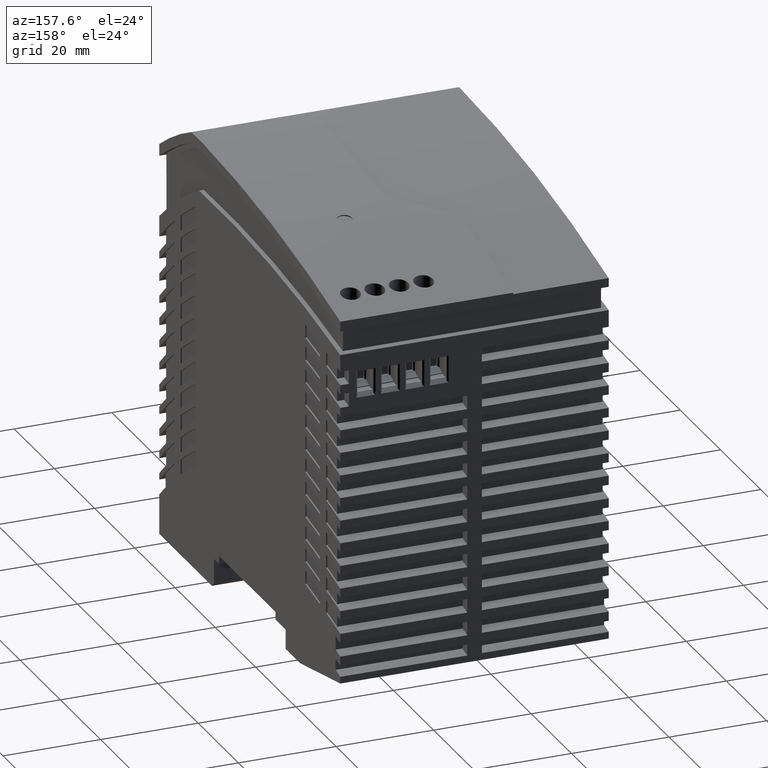
[diagram: clean part render]
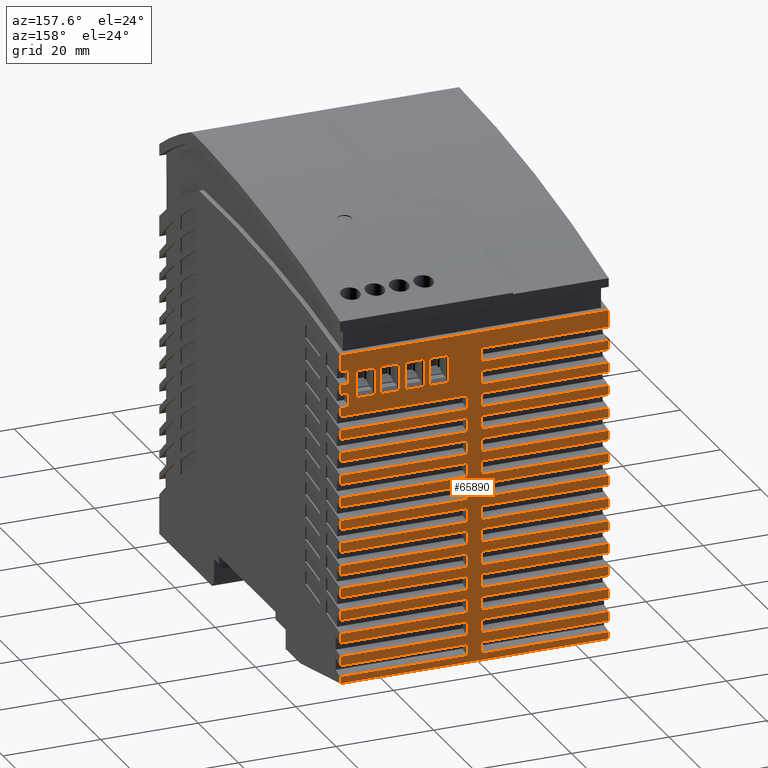
[diagram: same view with one face highlighted and labeled with its STEP entity id]
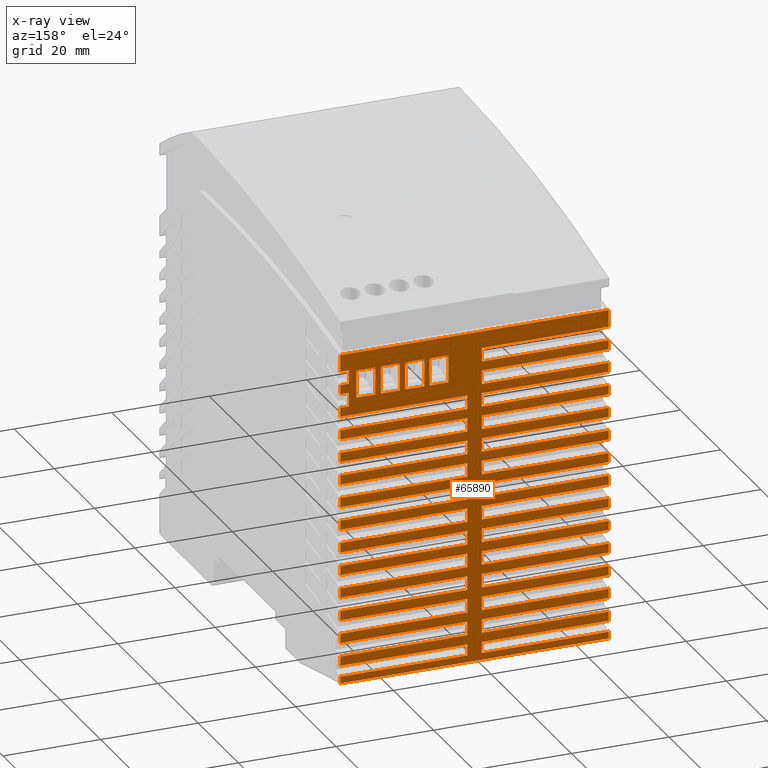
[diagram: x-ray of the same camera — body ghosted, the highlighted face saturated]
A machine part, auxiliary view. The second image highlights one B-rep face of the part: STEP entity #65890.
The next image is the same camera in x-ray: the body ghosted, the highlighted face saturated — about 0% of this face is hidden behind the body in this view.
In plain terms, the highlighted planar face has unit normal (0, -1, 0).
Its self-contained STEP definition (entity closure, byte-faithful):
#22440=CARTESIAN_POINT('',(44.9984763926468,6.02907227620774,-54.));
#22450=VERTEX_POINT('',#22440);
#22480=CARTESIAN_POINT('',(44.9984763926468,70.6450178215856,-54.));
#22490=DIRECTION('',(0.,1.,0.));
#22500=VECTOR('',#22490,1.);
#22510=LINE('',#22480,#22500);
#22520=CARTESIAN_POINT('',(44.9984763926468,7.42523708599833,-54.));
#22530=VERTEX_POINT('',#22520);
#22540=EDGE_CURVE('',#22450,#22530,#22510,.T.);
#22780=CARTESIAN_POINT('',(44.9984763926466,9.71694919013748,-54.));
#22790=VERTEX_POINT('',#22780);
#22820=CARTESIAN_POINT('',(44.9984763926468,11.6225007744063,-54.));
#22830=VERTEX_POINT('',#22820);
#22840=EDGE_CURVE('',#22790,#22830,#22510,.T.);
#23070=CARTESIAN_POINT('',(44.9984763926468,14.422921872841,-54.));
#23080=VERTEX_POINT('',#23070);
#23110=CARTESIAN_POINT('',(44.9984763926469,16.3282542433441,-54.));
#23120=VERTEX_POINT('',#23110);
#23130=EDGE_CURVE('',#23080,#23120,#22510,.T.);
#23370=CARTESIAN_POINT('',(44.9984763926466,19.127837263668,-54.));
#23380=VERTEX_POINT('',#23370);
#23410=CARTESIAN_POINT('',(44.9984763926468,21.0286517449621,-54.));
#23420=VERTEX_POINT('',#23410);
#23430=EDGE_CURVE('',#23380,#23420,#22510,.T.);
#23670=CARTESIAN_POINT('',(44.9984763926468,23.8282481274879,-54.));
#23680=VERTEX_POINT('',#23670);
#23710=CARTESIAN_POINT('',(44.9984763926468,25.7259068109905,-54.));
#23720=VERTEX_POINT('',#23710);
#23730=EDGE_CURVE('',#23680,#23720,#22510,.T.);
#23970=CARTESIAN_POINT('',(44.9984763926468,28.525515915243,-54.));
#23980=VERTEX_POINT('',#23970);
#24010=CARTESIAN_POINT('',(44.9984763926468,30.4201661538957,-54.));
#24020=VERTEX_POINT('',#24010);
#24030=EDGE_CURVE('',#23980,#24020,#22510,.T.);
#24270=CARTESIAN_POINT('',(44.9984763926465,33.2197873802546,-54.));
#24280=VERTEX_POINT('',#24270);
#24310=CARTESIAN_POINT('',(44.9984763926468,35.1115674083355,-54.));
#24320=VERTEX_POINT('',#24310);
#24330=EDGE_CURVE('',#24280,#24320,#22510,.T.);
#24570=CARTESIAN_POINT('',(44.9984763926468,37.9112001945338,-54.));
#24580=VERTEX_POINT('',#24570);
#24610=CARTESIAN_POINT('',(44.9984763926469,39.8002398280561,-54.));
#24620=VERTEX_POINT('',#24610);
#24630=EDGE_CURVE('',#24580,#24620,#22510,.T.);
#24870=CARTESIAN_POINT('',(44.9984763926468,42.599883646706,-54.));
#24880=VERTEX_POINT('',#24870);
#24910=CARTESIAN_POINT('',(44.9984763926468,0.,-54.));
#24920=DIRECTION('',(0.,-1.,0.));
#24930=VECTOR('',#24920,1.);
#24940=LINE('',#24910,#24930);
#24950=CARTESIAN_POINT('',(44.9984763926468,44.4863049205983,-54.));
#24960=VERTEX_POINT('',#24950);
#24970=EDGE_CURVE('',#24960,#24880,#24940,.T.);
#25210=CARTESIAN_POINT('',(44.9984763926466,47.2859592760169,-54.));
#25220=VERTEX_POINT('',#25210);
#25250=CARTESIAN_POINT('',(44.9984763926468,0.,-54.));
#25260=DIRECTION('',(0.,-1.,0.));
#25270=VECTOR('',#25260,1.);
#25280=LINE('',#25250,#25270);
#25290=CARTESIAN_POINT('',(44.9984763926468,49.1698770229476,-54.));
#25300=VERTEX_POINT('',#25290);
#25310=EDGE_CURVE('',#25300,#25220,#25280,.T.);
#25550=CARTESIAN_POINT('',(44.9984763926468,51.9695414491986,-54.));
#25560=VERTEX_POINT('',#25550);
#25590=CARTESIAN_POINT('',(44.9984763926468,0.,-54.));
#25600=DIRECTION('',(0.,-1.,0.));
#25610=VECTOR('',#25600,1.);
#25620=LINE('',#25590,#25610);
#25630=CARTESIAN_POINT('',(44.9984763926468,53.8510638277123,-54.));
#25640=VERTEX_POINT('',#25630);
#25650=EDGE_CURVE('',#25640,#25560,#25620,.T.);
#25890=CARTESIAN_POINT('',(44.9984763926467,56.6507378861592,-54.));
#25900=VERTEX_POINT('',#25890);
#25930=CARTESIAN_POINT('',(44.9984763926468,0.,-54.));
#25940=DIRECTION('',(0.,-1.,0.));
#25950=VECTOR('',#25940,1.);
#25960=LINE('',#25930,#25950);
#25970=CARTESIAN_POINT('',(44.9984763926469,58.5299668623666,-54.));
#25980=VERTEX_POINT('',#25970);
#25990=EDGE_CURVE('',#25980,#25900,#25960,.T.);
#26230=CARTESIAN_POINT('',(44.9984763926466,61.329650139755,-54.));
#26240=VERTEX_POINT('',#26230);
#26270=CARTESIAN_POINT('',(44.9984763926468,0.,-54.));
#26280=DIRECTION('',(0.,-1.,0.));
#26290=VECTOR('',#26280,1.);
#26300=LINE('',#26270,#26290);
#26310=CARTESIAN_POINT('',(44.9984763926468,63.2066819276949,-54.));
#26320=VERTEX_POINT('',#26310);
#26330=EDGE_CURVE('',#26320,#26240,#26300,.T.);
#26570=CARTESIAN_POINT('',(44.9984763926466,66.0063740342894,-54.));
#26580=VERTEX_POINT('',#26570);
#26610=CARTESIAN_POINT('',(44.9984763926468,0.,-54.));
#26620=DIRECTION('',(0.,-1.,0.));
#26630=VECTOR('',#26620,1.);
#26640=LINE('',#26610,#26630);
#26650=CARTESIAN_POINT('',(44.9984763926468,67.8812994988936,-54.));
#26660=VERTEX_POINT('',#26650);
#26670=EDGE_CURVE('',#26660,#26580,#26640,.T.);
#26910=CARTESIAN_POINT('',(44.9984763926465,70.6810000668509,-54.));
#26920=VERTEX_POINT('',#26910);
#26950=CARTESIAN_POINT('',(44.9984763926468,0.,-54.));
#26960=DIRECTION('',(0.,-1.,0.));
#26970=VECTOR('',#26960,1.);
#26980=LINE('',#26950,#26970);
#26990=CARTESIAN_POINT('',(44.9984763926468,74.1388975645999,-54.));
#27000=VERTEX_POINT('',#26990);
#27010=EDGE_CURVE('',#27000,#26920,#26980,.T.);
#40500=CARTESIAN_POINT('',(44.9984763926468,74.1388975645999,1.));
#40510=VERTEX_POINT('',#40500);
#40540=CARTESIAN_POINT('',(44.9984763926468,0.,1.));
#40550=DIRECTION('',(0.,-1.,0.));
#40560=VECTOR('',#40550,1.);
#40570=LINE('',#40540,#40560);
#40580=CARTESIAN_POINT('',(44.9984763926467,70.6810000668507,1.));
#40590=VERTEX_POINT('',#40580);
#40600=EDGE_CURVE('',#40510,#40590,#40570,.T.);
#40840=CARTESIAN_POINT('',(44.9984763926468,67.8812994988935,1.));
#40850=VERTEX_POINT('',#40840);
#40880=CARTESIAN_POINT('',(44.9984763926467,66.0063740342895,1.));
#40890=VERTEX_POINT('',#40880);
#40900=EDGE_CURVE('',#40850,#40890,#40570,.T.);
#41140=CARTESIAN_POINT('',(44.9984763926468,63.2066819276949,1.));
#41150=VERTEX_POINT('',#41140);
#41180=CARTESIAN_POINT('',(44.9984763926468,61.3296501397554,1.));
#41190=VERTEX_POINT('',#41180);
#41200=EDGE_CURVE('',#41150,#41190,#40570,.T.);
#41440=CARTESIAN_POINT('',(44.9984763926468,58.5299668623664,1.));
#41450=VERTEX_POINT('',#41440);
#41480=CARTESIAN_POINT('',(44.9984763926467,56.6507378861591,1.));
#41490=VERTEX_POINT('',#41480);
#41500=EDGE_CURVE('',#41450,#41490,#40570,.T.);
#41740=CARTESIAN_POINT('',(44.9984763926469,53.8510638277124,1.));
#41750=VERTEX_POINT('',#41740);
#41780=CARTESIAN_POINT('',(44.9984763926467,51.9695414491985,1.));
#41790=VERTEX_POINT('',#41780);
#41800=EDGE_CURVE('',#41750,#41790,#40570,.T.);
#42040=CARTESIAN_POINT('',(44.9984763926468,49.1698770229475,1.));
#42050=VERTEX_POINT('',#42040);
#42080=CARTESIAN_POINT('',(44.9984763926468,47.2859592760169,1.));
#42090=VERTEX_POINT('',#42080);
#42100=EDGE_CURVE('',#42050,#42090,#40570,.T.);
#42340=CARTESIAN_POINT('',(44.998476392647,44.4863049205986,1.));
#42350=VERTEX_POINT('',#42340);
#42380=CARTESIAN_POINT('',(44.9984763926468,42.5998836467058,1.));
#42390=VERTEX_POINT('',#42380);
#42400=EDGE_CURVE('',#42350,#42390,#40570,.T.);
#42640=CARTESIAN_POINT('',(44.9984763926468,39.8002398280561,1.));
#42650=VERTEX_POINT('',#42640);
#42680=CARTESIAN_POINT('',(44.9984763926467,37.9112001945338,1.));
#42690=VERTEX_POINT('',#42680);
#42700=EDGE_CURVE('',#42650,#42690,#40570,.T.);
#42940=CARTESIAN_POINT('',(44.9984763926468,35.1115674083356,1.));
#42950=VERTEX_POINT('',#42940);
#42980=CARTESIAN_POINT('',(44.9984763926467,33.2197873802544,1.));
#42990=VERTEX_POINT('',#42980);
#43000=EDGE_CURVE('',#42950,#42990,#40570,.T.);
#43240=CARTESIAN_POINT('',(44.9984763926468,30.4201661538957,1.));
#43250=VERTEX_POINT('',#43240);
#43280=CARTESIAN_POINT('',(44.9984763926468,28.5255159152431,1.));
#43290=VERTEX_POINT('',#43280);
#43300=EDGE_CURVE('',#43250,#43290,#40570,.T.);
#43540=CARTESIAN_POINT('',(44.9984763926469,25.7259068109909,1.));
#43550=VERTEX_POINT('',#43540);
#43580=CARTESIAN_POINT('',(44.9984763926468,23.8282481274878,1.));
#43590=VERTEX_POINT('',#43580);
#43600=EDGE_CURVE('',#43550,#43590,#40570,.T.);
#43840=CARTESIAN_POINT('',(44.9984763926468,21.0286517449619,1.));
#43850=VERTEX_POINT('',#43840);
#43880=CARTESIAN_POINT('',(44.9984763926468,19.1278372636677,1.));
#43890=VERTEX_POINT('',#43880);
#43900=EDGE_CURVE('',#43850,#43890,#40570,.T.);
#44140=CARTESIAN_POINT('',(44.9984763926468,16.328254243344,1.));
#44150=VERTEX_POINT('',#44140);
#44180=CARTESIAN_POINT('',(44.9984763926468,14.4229218728411,1.));
#44190=VERTEX_POINT('',#44180);
#44200=EDGE_CURVE('',#44150,#44190,#40570,.T.);
#44430=CARTESIAN_POINT('',(44.9984763926469,11.6225007744062,1.));
#44440=VERTEX_POINT('',#44430);
#44470=CARTESIAN_POINT('',(44.9984763926468,9.71694919013724,1.));
#44480=VERTEX_POINT('',#44470);
#44490=EDGE_CURVE('',#44440,#44480,#40570,.T.);
#44730=CARTESIAN_POINT('',(44.9984763926468,7.42523708599816,1.));
#44740=VERTEX_POINT('',#44730);
#44770=CARTESIAN_POINT('',(44.9984763926468,6.02907227620774,1.));
#44780=VERTEX_POINT('',#44770);
#44790=EDGE_CURVE('',#44740,#44780,#40570,.T.);
#56290=CARTESIAN_POINT('',(44.9984763926468,74.1388975645999,-54.));
#56300=DIRECTION('',(0.,0.,1.));
#56310=VECTOR('',#56300,1.);
#56320=LINE('',#56290,#56310);
#56330=EDGE_CURVE('',#27000,#40510,#56320,.T.);
#57820=CARTESIAN_POINT('',(44.9984763926468,6.02907227620774,0.));
#57830=DIRECTION('',(0.,0.,1.));
#57840=VECTOR('',#57830,1.);
#57850=LINE('',#57820,#57840);
#57860=EDGE_CURVE('',#22450,#44780,#57850,.T.);
#57980=CARTESIAN_POINT('',(44.9984763926468,6.02907227620774,-54.));
#57990=DIRECTION('',(-1.,0.,0.));
#58000=DIRECTION('',(0.,-1.,0.));
#58010=AXIS2_PLACEMENT_3D('',#57980,#57990,#58000);
#58020=PLANE('',#58010);
#58030=CARTESIAN_POINT('',(44.9984763926468,70.3390722762253,0.));
#58040=DIRECTION('',(0.,0.,1.));
#58050=VECTOR('',#58040,1.);
#58060=LINE('',#58030,#58050);
#58070=CARTESIAN_POINT('',(44.9984763926468,70.3390722762253,
-6.20000000001391));
#58080=VERTEX_POINT('',#58070);
#58090=CARTESIAN_POINT('',(44.9984763926468,70.3390722762253,
-2.29999999998609));
#58100=VERTEX_POINT('',#58090);
#58110=EDGE_CURVE('',#58080,#58100,#58060,.T.);
#58120=ORIENTED_EDGE('',*,*,#58110,.F.);
#58130=CARTESIAN_POINT('',(44.9984763926468,0.,-2.29999999998609));
#58140=DIRECTION('',(0.,-1.,0.));
#58150=VECTOR('',#58140,1.);
#58160=LINE('',#58130,#58150);
#58170=CARTESIAN_POINT('',(44.9984763926468,64.7390722761974,
-2.29999999998611));
#58180=VERTEX_POINT('',#58170);
#58190=EDGE_CURVE('',#58100,#58180,#58160,.T.);
#58200=ORIENTED_EDGE('',*,*,#58190,.F.);
#58210=CARTESIAN_POINT('',(44.9984763926468,64.7390722761974,0.));
#58220=DIRECTION('',(0.,0.,-1.));
#58230=VECTOR('',#58220,1.);
#58240=LINE('',#58210,#58230);
#58250=CARTESIAN_POINT('',(44.9984763926468,64.7390722761974,
-6.20000000001391));
#58260=VERTEX_POINT('',#58250);
#58270=EDGE_CURVE('',#58180,#58260,#58240,.T.);
#58280=ORIENTED_EDGE('',*,*,#58270,.F.);
#58290=CARTESIAN_POINT('',(44.9984763926468,0.,-6.20000000001391));
#58300=DIRECTION('',(0.,1.,0.));
#58310=VECTOR('',#58300,1.);
#58320=LINE('',#58290,#58310);
#58330=EDGE_CURVE('',#58260,#58080,#58320,.T.);
#58340=ORIENTED_EDGE('',*,*,#58330,.F.);
#58350=EDGE_LOOP('',(#58340,#58280,#58200,#58120));
#58360=FACE_BOUND('',#58350,.T.);
#58370=CARTESIAN_POINT('',(44.9984763926468,70.3390722762253,0.));
#58380=DIRECTION('',(0.,0.,1.));
#58390=VECTOR('',#58380,1.);
#58400=LINE('',#58370,#58390);
#58410=CARTESIAN_POINT('',(44.9984763926468,70.3390722762253,
-16.2000000000139));
#58420=VERTEX_POINT('',#58410);
#58430=CARTESIAN_POINT('',(44.9984763926468,70.3390722762253,
-12.2999999999861));
#58440=VERTEX_POINT('',#58430);
#58450=EDGE_CURVE('',#58420,#58440,#58400,.T.);
#58460=ORIENTED_EDGE('',*,*,#58450,.F.);
#58470=CARTESIAN_POINT('',(44.9984763926468,0.,-12.2999999999861));
#58480=DIRECTION('',(0.,-1.,0.));
#58490=VECTOR('',#58480,1.);
#58500=LINE('',#58470,#58490);
#58510=CARTESIAN_POINT('',(44.9984763926468,64.7390722761974,
-12.2999999999861));
#58520=VERTEX_POINT('',#58510);
#58530=EDGE_CURVE('',#58440,#58520,#58500,.T.);
#58540=ORIENTED_EDGE('',*,*,#58530,.F.);
#58550=CARTESIAN_POINT('',(44.9984763926468,64.7390722761974,0.));
#58560=DIRECTION('',(0.,0.,-1.));
#58570=VECTOR('',#58560,1.);
#58580=LINE('',#58550,#58570);
#58590=CARTESIAN_POINT('',(44.9984763926468,64.7390722761974,
-16.2000000000139));
#58600=VERTEX_POINT('',#58590);
#58610=EDGE_CURVE('',#58520,#58600,#58580,.T.);
#58620=ORIENTED_EDGE('',*,*,#58610,.F.);
#58630=CARTESIAN_POINT('',(44.9984763926468,0.,-16.2000000000139));
#58640=DIRECTION('',(0.,1.,0.));
#58650=VECTOR('',#58640,1.);
#58660=LINE('',#58630,#58650);
#58670=EDGE_CURVE('',#58600,#58420,#58660,.T.);
#58680=ORIENTED_EDGE('',*,*,#58670,.F.);
#58690=EDGE_LOOP('',(#58680,#58620,#58540,#58460));
#58700=FACE_BOUND('',#58690,.T.);
#58710=CARTESIAN_POINT('',(44.9984763926468,70.3390722762253,0.));
#58720=DIRECTION('',(0.,0.,1.));
#58730=VECTOR('',#58720,1.);
#58740=LINE('',#58710,#58730);
#58750=CARTESIAN_POINT('',(44.9984763926468,70.3390722762253,
-21.2000000000139));
#58760=VERTEX_POINT('',#58750);
#58770=CARTESIAN_POINT('',(44.9984763926468,70.3390722762253,
-17.2999999999861));
#58780=VERTEX_POINT('',#58770);
#58790=EDGE_CURVE('',#58760,#58780,#58740,.T.);
#58800=ORIENTED_EDGE('',*,*,#58790,.F.);
#58810=CARTESIAN_POINT('',(44.9984763926468,0.,-17.2999999999861));
#58820=DIRECTION('',(0.,-1.,0.));
#58830=VECTOR('',#58820,1.);
#58840=LINE('',#58810,#58830);
#58850=CARTESIAN_POINT('',(44.9984763926468,64.7390722761974,
-17.2999999999861));
#58860=VERTEX_POINT('',#58850);
#58870=EDGE_CURVE('',#58780,#58860,#58840,.T.);
#58880=ORIENTED_EDGE('',*,*,#58870,.F.);
#58890=CARTESIAN_POINT('',(44.9984763926468,64.7390722761974,0.));
#58900=DIRECTION('',(0.,0.,-1.));
#58910=VECTOR('',#58900,1.);
#58920=LINE('',#58890,#58910);
#58930=CARTESIAN_POINT('',(44.9984763926468,64.7390722761974,
-21.2000000000139));
#58940=VERTEX_POINT('',#58930);
#58950=EDGE_CURVE('',#58860,#58940,#58920,.T.);
#58960=ORIENTED_EDGE('',*,*,#58950,.F.);
#58970=CARTESIAN_POINT('',(44.9984763926468,0.,-21.2000000000139));
#58980=DIRECTION('',(0.,1.,0.));
#58990=VECTOR('',#58980,1.);
#59000=LINE('',#58970,#58990);
#59010=EDGE_CURVE('',#58940,#58760,#59000,.T.);
#59020=ORIENTED_EDGE('',*,*,#59010,.F.);
#59030=EDGE_LOOP('',(#59020,#58960,#58880,#58800));
#59040=FACE_BOUND('',#59030,.T.);
#59050=CARTESIAN_POINT('',(44.9984763926468,70.3390722762253,0.));
#59060=DIRECTION('',(0.,0.,1.));
#59070=VECTOR('',#59060,1.);
#59080=LINE('',#59050,#59070);
#59090=CARTESIAN_POINT('',(44.9984763926468,70.3390722762253,
-11.2000000000139));
#59100=VERTEX_POINT('',#59090);
#59110=CARTESIAN_POINT('',(44.9984763926468,70.3390722762253,
-7.29999999998609));
#59120=VERTEX_POINT('',#59110);
#59130=EDGE_CURVE('',#59100,#59120,#59080,.T.);
#59140=ORIENTED_EDGE('',*,*,#59130,.F.);
#59150=CARTESIAN_POINT('',(44.9984763926468,0.,-7.29999999998608));
#59160=DIRECTION('',(0.,-1.,0.));
#59170=VECTOR('',#59160,1.);
#59180=LINE('',#59150,#59170);
#59190=CARTESIAN_POINT('',(44.9984763926468,64.7390722761974,
-7.29999999998608));
#59200=VERTEX_POINT('',#59190);
#59210=EDGE_CURVE('',#59120,#59200,#59180,.T.);
#59220=ORIENTED_EDGE('',*,*,#59210,.F.);
#59230=CARTESIAN_POINT('',(44.9984763926468,64.7390722761974,0.));
#59240=DIRECTION('',(0.,0.,-1.));
#59250=VECTOR('',#59240,1.);
#59260=LINE('',#59230,#59250);
#59270=CARTESIAN_POINT('',(44.9984763926468,64.7390722761974,
-11.2000000000139));
#59280=VERTEX_POINT('',#59270);
#59290=EDGE_CURVE('',#59200,#59280,#59260,.T.);
#59300=ORIENTED_EDGE('',*,*,#59290,.F.);
#59310=CARTESIAN_POINT('',(44.9984763926468,0.,-11.2000000000139));
#59320=DIRECTION('',(0.,1.,0.));
#59330=VECTOR('',#59320,1.);
#59340=LINE('',#59310,#59330);
#59350=EDGE_CURVE('',#59280,#59100,#59340,.T.);
#59360=ORIENTED_EDGE('',*,*,#59350,.F.);
#59370=EDGE_LOOP('',(#59360,#59300,#59220,#59140));
#59380=FACE_BOUND('',#59370,.T.);
#59390=ORIENTED_EDGE('',*,*,#27010,.F.);
#59400=CARTESIAN_POINT('',(44.9984763926467,70.6810000668509,-28.));
#59410=DIRECTION('',(0.,0.,-1.));
#59420=VECTOR('',#59410,1.);
#59430=LINE('',#59400,#59420);
#59440=CARTESIAN_POINT('',(44.9984763926467,70.6810000668509,-28.));
#59450=VERTEX_POINT('',#59440);
#59460=EDGE_CURVE('',#59450,#26920,#59430,.T.);
#59470=ORIENTED_EDGE('',*,*,#59460,.T.);
#59480=CARTESIAN_POINT('',(44.9984763926468,0.,-28.));
#59490=DIRECTION('',(0.,-1.,0.));
#59500=VECTOR('',#59490,1.);
#59510=LINE('',#59480,#59500);
#59520=CARTESIAN_POINT('',(44.9984763926468,67.8812994988936,-28.));
#59530=VERTEX_POINT('',#59520);
#59540=EDGE_CURVE('',#59450,#59530,#59510,.T.);
#59550=ORIENTED_EDGE('',*,*,#59540,.F.);
#59560=CARTESIAN_POINT('',(44.9984763926468,67.8812994988936,-28.));
#59570=DIRECTION('',(0.,0.,1.));
#59580=VECTOR('',#59570,1.);
#59590=LINE('',#59560,#59580);
#59600=EDGE_CURVE('',#26660,#59530,#59590,.T.);
#59610=ORIENTED_EDGE('',*,*,#59600,.T.);
#59620=ORIENTED_EDGE('',*,*,#26670,.F.);
#59630=CARTESIAN_POINT('',(44.9984763926468,66.0063740342894,-28.));
#59640=DIRECTION('',(0.,0.,-1.));
#59650=VECTOR('',#59640,1.);
#59660=LINE('',#59630,#59650);
#59670=CARTESIAN_POINT('',(44.9984763926468,66.0063740342894,-28.));
#59680=VERTEX_POINT('',#59670);
#59690=EDGE_CURVE('',#59680,#26580,#59660,.T.);
#59700=ORIENTED_EDGE('',*,*,#59690,.T.);
#59710=CARTESIAN_POINT('',(44.9984763926468,0.,-28.));
#59720=DIRECTION('',(0.,-1.,0.));
#59730=VECTOR('',#59720,1.);
#59740=LINE('',#59710,#59730);
#59750=CARTESIAN_POINT('',(44.9984763926468,63.2066819276949,-28.));
#59760=VERTEX_POINT('',#59750);
#59770=EDGE_CURVE('',#59680,#59760,#59740,.T.);
#59780=ORIENTED_EDGE('',*,*,#59770,.F.);
#59790=CARTESIAN_POINT('',(44.9984763926468,63.2066819276949,-28.));
#59800=DIRECTION('',(0.,0.,1.));
#59810=VECTOR('',#59800,1.);
#59820=LINE('',#59790,#59810);
#59830=EDGE_CURVE('',#26320,#59760,#59820,.T.);
#59840=ORIENTED_EDGE('',*,*,#59830,.T.);
#59850=ORIENTED_EDGE('',*,*,#26330,.F.);
#59860=CARTESIAN_POINT('',(44.9984763926468,61.3296501397549,-28.));
#59870=DIRECTION('',(0.,0.,-1.));
#59880=VECTOR('',#59870,1.);
#59890=LINE('',#59860,#59880);
#59900=CARTESIAN_POINT('',(44.9984763926468,61.3296501397549,-28.));
#59910=VERTEX_POINT('',#59900);
#59920=EDGE_CURVE('',#59910,#26240,#59890,.T.);
#59930=ORIENTED_EDGE('',*,*,#59920,.T.);
#59940=CARTESIAN_POINT('',(44.9984763926468,0.,-28.));
#59950=DIRECTION('',(0.,-1.,0.));
#59960=VECTOR('',#59950,1.);
#59970=LINE('',#59940,#59960);
#59980=CARTESIAN_POINT('',(44.9984763926468,58.5299668623666,-28.));
#59990=VERTEX_POINT('',#59980);
#60000=EDGE_CURVE('',#59910,#59990,#59970,.T.);
#60010=ORIENTED_EDGE('',*,*,#60000,.F.);
#60020=CARTESIAN_POINT('',(44.9984763926469,58.5299668623666,-28.));
#60030=DIRECTION('',(0.,0.,1.));
#60040=VECTOR('',#60030,1.);
#60050=LINE('',#60020,#60040);
#60060=EDGE_CURVE('',#25980,#59990,#60050,.T.);
#60070=ORIENTED_EDGE('',*,*,#60060,.T.);
#60080=ORIENTED_EDGE('',*,*,#25990,.F.);
#60090=CARTESIAN_POINT('',(44.9984763926467,56.6507378861592,-28.));
#60100=DIRECTION('',(0.,0.,-1.));
#60110=VECTOR('',#60100,1.);
#60120=LINE('',#60090,#60110);
#60130=CARTESIAN_POINT('',(44.9984763926468,56.6507378861592,-28.));
#60140=VERTEX_POINT('',#60130);
#60150=EDGE_CURVE('',#60140,#25900,#60120,.T.);
#60160=ORIENTED_EDGE('',*,*,#60150,.T.);
#60170=CARTESIAN_POINT('',(44.9984763926468,0.,-28.));
#60180=DIRECTION('',(0.,-1.,0.));
#60190=VECTOR('',#60180,1.);
#60200=LINE('',#60170,#60190);
#60210=CARTESIAN_POINT('',(44.9984763926468,53.8510638277123,-28.));
#60220=VERTEX_POINT('',#60210);
#60230=EDGE_CURVE('',#60140,#60220,#60200,.T.);
#60240=ORIENTED_EDGE('',*,*,#60230,.F.);
#60250=CARTESIAN_POINT('',(44.9984763926469,53.8510638277123,-28.));
#60260=DIRECTION('',(0.,0.,1.));
#60270=VECTOR('',#60260,1.);
#60280=LINE('',#60250,#60270);
#60290=EDGE_CURVE('',#25640,#60220,#60280,.T.);
#60300=ORIENTED_EDGE('',*,*,#60290,.T.);
#60310=ORIENTED_EDGE('',*,*,#25650,.F.);
#60320=CARTESIAN_POINT('',(44.9984763926468,51.9695414491986,-28.));
#60330=DIRECTION('',(0.,0.,-1.));
#60340=VECTOR('',#60330,1.);
#60350=LINE('',#60320,#60340);
#60360=CARTESIAN_POINT('',(44.9984763926468,51.9695414491986,-28.));
#60370=VERTEX_POINT('',#60360);
#60380=EDGE_CURVE('',#60370,#25560,#60350,.T.);
#60390=ORIENTED_EDGE('',*,*,#60380,.T.);
#60400=CARTESIAN_POINT('',(44.9984763926468,0.,-28.));
#60410=DIRECTION('',(0.,-1.,0.));
#60420=VECTOR('',#60410,1.);
#60430=LINE('',#60400,#60420);
#60440=CARTESIAN_POINT('',(44.9984763926468,49.1698770229476,-28.));
#60450=VERTEX_POINT('',#60440);
#60460=EDGE_CURVE('',#60370,#60450,#60430,.T.);
#60470=ORIENTED_EDGE('',*,*,#60460,.F.);
#60480=CARTESIAN_POINT('',(44.998476392647,49.1698770229476,-28.));
#60490=DIRECTION('',(0.,0.,1.));
#60500=VECTOR('',#60490,1.);
#60510=LINE('',#60480,#60500);
#60520=EDGE_CURVE('',#25300,#60450,#60510,.T.);
#60530=ORIENTED_EDGE('',*,*,#60520,.T.);
#60540=ORIENTED_EDGE('',*,*,#25310,.F.);
#60550=CARTESIAN_POINT('',(44.9984763926467,47.2859592760169,-28.));
#60560=DIRECTION('',(0.,0.,-1.));
#60570=VECTOR('',#60560,1.);
#60580=LINE('',#60550,#60570);
#60590=CARTESIAN_POINT('',(44.9984763926467,47.2859592760169,-28.));
#60600=VERTEX_POINT('',#60590);
#60610=EDGE_CURVE('',#60600,#25220,#60580,.T.);
#60620=ORIENTED_EDGE('',*,*,#60610,.T.);
#60630=CARTESIAN_POINT('',(44.9984763926468,0.,-28.));
#60640=DIRECTION('',(0.,-1.,0.));
#60650=VECTOR('',#60640,1.);
#60660=LINE('',#60630,#60650);
#60670=CARTESIAN_POINT('',(44.998476392647,44.4863049205983,-28.));
#60680=VERTEX_POINT('',#60670);
#60690=EDGE_CURVE('',#60600,#60680,#60660,.T.);
#60700=ORIENTED_EDGE('',*,*,#60690,.F.);
#60710=CARTESIAN_POINT('',(44.998476392647,44.4863049205983,-28.));
#60720=DIRECTION('',(0.,0.,1.));
#60730=VECTOR('',#60720,1.);
#60740=LINE('',#60710,#60730);
#60750=EDGE_CURVE('',#24960,#60680,#60740,.T.);
#60760=ORIENTED_EDGE('',*,*,#60750,.T.);
#60770=ORIENTED_EDGE('',*,*,#24970,.F.);
#60780=CARTESIAN_POINT('',(44.9984763926468,42.5998836467059,-28.));
#60790=DIRECTION('',(0.,0.,-1.));
#60800=VECTOR('',#60790,1.);
#60810=LINE('',#60780,#60800);
#60820=CARTESIAN_POINT('',(44.9984763926468,42.5998836467059,-28.));
#60830=VERTEX_POINT('',#60820);
#60840=EDGE_CURVE('',#60830,#24880,#60810,.T.);
#60850=ORIENTED_EDGE('',*,*,#60840,.T.);
#60860=CARTESIAN_POINT('',(44.9984763926468,0.,-28.));
#60870=DIRECTION('',(0.,-1.,0.));
#60880=VECTOR('',#60870,1.);
#60890=LINE('',#60860,#60880);
#60900=CARTESIAN_POINT('',(44.9984763926469,39.8002398280561,-28.));
#60910=VERTEX_POINT('',#60900);
#60920=EDGE_CURVE('',#60830,#60910,#60890,.T.);
#60930=ORIENTED_EDGE('',*,*,#60920,.F.);
#60940=CARTESIAN_POINT('',(44.9984763926469,39.8002398280561,-28.));
#60950=DIRECTION('',(0.,0.,1.));
#60960=VECTOR('',#60950,1.);
#60970=LINE('',#60940,#60960);
#60980=EDGE_CURVE('',#24620,#60910,#60970,.T.);
#60990=ORIENTED_EDGE('',*,*,#60980,.T.);
#61000=ORIENTED_EDGE('',*,*,#24630,.T.);
#61010=CARTESIAN_POINT('',(44.9984763926468,37.9112001945338,-28.));
#61020=DIRECTION('',(0.,0.,-1.));
#61030=VECTOR('',#61020,1.);
#61040=LINE('',#61010,#61030);
#61050=CARTESIAN_POINT('',(44.9984763926468,37.9112001945338,-28.));
#61060=VERTEX_POINT('',#61050);
#61070=EDGE_CURVE('',#61060,#24580,#61040,.T.);
#61080=ORIENTED_EDGE('',*,*,#61070,.T.);
#61090=CARTESIAN_POINT('',(44.9984763926468,0.,-28.));
#61100=DIRECTION('',(0.,-1.,0.));
#61110=VECTOR('',#61100,1.);
#61120=LINE('',#61090,#61110);
#61130=CARTESIAN_POINT('',(44.9984763926468,35.1115674083355,-28.));
#61140=VERTEX_POINT('',#61130);
#61150=EDGE_CURVE('',#61060,#61140,#61120,.T.);
#61160=ORIENTED_EDGE('',*,*,#61150,.F.);
#61170=CARTESIAN_POINT('',(44.998476392647,35.1115674083355,-28.));
#61180=DIRECTION('',(0.,0.,1.));
#61190=VECTOR('',#61180,1.);
#61200=LINE('',#61170,#61190);
#61210=EDGE_CURVE('',#24320,#61140,#61200,.T.);
#61220=ORIENTED_EDGE('',*,*,#61210,.T.);
#61230=ORIENTED_EDGE('',*,*,#24330,.T.);
#61240=CARTESIAN_POINT('',(44.9984763926467,33.2197873802545,-28.));
#61250=DIRECTION('',(0.,0.,-1.));
#61260=VECTOR('',#61250,1.);
#61270=LINE('',#61240,#61260);
#61280=CARTESIAN_POINT('',(44.9984763926468,33.2197873802545,-28.));
#61290=VERTEX_POINT('',#61280);
#61300=EDGE_CURVE('',#61290,#24280,#61270,.T.);
#61310=ORIENTED_EDGE('',*,*,#61300,.T.);
#61320=CARTESIAN_POINT('',(44.9984763926468,0.,-28.));
#61330=DIRECTION('',(0.,-1.,0.));
#61340=VECTOR('',#61330,1.);
#61350=LINE('',#61320,#61340);
#61360=CARTESIAN_POINT('',(44.9984763926468,30.4201661538957,-28.));
#61370=VERTEX_POINT('',#61360);
#61380=EDGE_CURVE('',#61290,#61370,#61350,.T.);
#61390=ORIENTED_EDGE('',*,*,#61380,.F.);
#61400=CARTESIAN_POINT('',(44.9984763926468,30.4201661538957,-28.));
#61410=DIRECTION('',(0.,0.,1.));
#61420=VECTOR('',#61410,1.);
#61430=LINE('',#61400,#61420);
#61440=EDGE_CURVE('',#24020,#61370,#61430,.T.);
#61450=ORIENTED_EDGE('',*,*,#61440,.T.);
#61460=ORIENTED_EDGE('',*,*,#24030,.T.);
#61470=CARTESIAN_POINT('',(44.9984763926467,28.525515915243,-28.));
#61480=DIRECTION('',(0.,0.,-1.));
#61490=VECTOR('',#61480,1.);
#61500=LINE('',#61470,#61490);
#61510=CARTESIAN_POINT('',(44.9984763926468,28.525515915243,-28.));
#61520=VERTEX_POINT('',#61510);
#61530=EDGE_CURVE('',#61520,#23980,#61500,.T.);
#61540=ORIENTED_EDGE('',*,*,#61530,.T.);
#61550=CARTESIAN_POINT('',(44.9984763926468,0.,-28.));
#61560=DIRECTION('',(0.,-1.,0.));
#61570=VECTOR('',#61560,1.);
#61580=LINE('',#61550,#61570);
#61590=CARTESIAN_POINT('',(44.9984763926468,25.7259068109905,-28.));
#61600=VERTEX_POINT('',#61590);
#61610=EDGE_CURVE('',#61520,#61600,#61580,.T.);
#61620=ORIENTED_EDGE('',*,*,#61610,.F.);
#61630=CARTESIAN_POINT('',(44.9984763926468,25.7259068109905,-28.));
#61640=DIRECTION('',(0.,0.,1.));
#61650=VECTOR('',#61640,1.);
#61660=LINE('',#61630,#61650);
#61670=EDGE_CURVE('',#23720,#61600,#61660,.T.);
#61680=ORIENTED_EDGE('',*,*,#61670,.T.);
#61690=ORIENTED_EDGE('',*,*,#23730,.T.);
#61700=CARTESIAN_POINT('',(44.9984763926468,23.8282481274879,-28.));
#61710=DIRECTION('',(0.,0.,-1.));
#61720=VECTOR('',#61710,1.);
#61730=LINE('',#61700,#61720);
#61740=CARTESIAN_POINT('',(44.9984763926468,23.8282481274879,-28.));
#61750=VERTEX_POINT('',#61740);
#61760=EDGE_CURVE('',#61750,#23680,#61730,.T.);
#61770=ORIENTED_EDGE('',*,*,#61760,.T.);
#61780=CARTESIAN_POINT('',(44.9984763926468,0.,-28.));
#61790=DIRECTION('',(0.,-1.,0.));
#61800=VECTOR('',#61790,1.);
#61810=LINE('',#61780,#61800);
#61820=CARTESIAN_POINT('',(44.9984763926468,21.0286517449621,-28.));
#61830=VERTEX_POINT('',#61820);
#61840=EDGE_CURVE('',#61750,#61830,#61810,.T.);
#61850=ORIENTED_EDGE('',*,*,#61840,.F.);
#61860=CARTESIAN_POINT('',(44.9984763926469,21.0286517449621,-28.));
#61870=DIRECTION('',(0.,0.,1.));
#61880=VECTOR('',#61870,1.);
#61890=LINE('',#61860,#61880);
#61900=EDGE_CURVE('',#23420,#61830,#61890,.T.);
#61910=ORIENTED_EDGE('',*,*,#61900,.T.);
#61920=ORIENTED_EDGE('',*,*,#23430,.T.);
#61930=CARTESIAN_POINT('',(44.9984763926467,19.127837263668,-28.));
#61940=DIRECTION('',(0.,0.,-1.));
#61950=VECTOR('',#61940,1.);
#61960=LINE('',#61930,#61950);
#61970=CARTESIAN_POINT('',(44.9984763926467,19.127837263668,-28.));
#61980=VERTEX_POINT('',#61970);
#61990=EDGE_CURVE('',#61980,#23380,#61960,.T.);
#62000=ORIENTED_EDGE('',*,*,#61990,.T.);
#62010=CARTESIAN_POINT('',(44.9984763926468,0.,-28.));
#62020=DIRECTION('',(0.,-1.,0.));
#62030=VECTOR('',#62020,1.);
#62040=LINE('',#62010,#62030);
#62050=CARTESIAN_POINT('',(44.9984763926468,16.3282542433441,-28.));
#62060=VERTEX_POINT('',#62050);
#62070=EDGE_CURVE('',#61980,#62060,#62040,.T.);
#62080=ORIENTED_EDGE('',*,*,#62070,.F.);
#62090=CARTESIAN_POINT('',(44.9984763926469,16.3282542433441,-28.));
#62100=DIRECTION('',(0.,0.,1.));
#62110=VECTOR('',#62100,1.);
#62120=LINE('',#62090,#62110);
#62130=EDGE_CURVE('',#23120,#62060,#62120,.T.);
#62140=ORIENTED_EDGE('',*,*,#62130,.T.);
#62150=ORIENTED_EDGE('',*,*,#23130,.T.);
#62160=CARTESIAN_POINT('',(44.9984763926468,14.422921872841,0.));
#62170=DIRECTION('',(0.,0.,-1.));
#62180=VECTOR('',#62170,1.);
#62190=LINE('',#62160,#62180);
#62200=CARTESIAN_POINT('',(44.9984763926468,14.422921872841,-28.));
#62210=VERTEX_POINT('',#62200);
#62220=EDGE_CURVE('',#62210,#23080,#62190,.T.);
#62230=ORIENTED_EDGE('',*,*,#62220,.T.);
#62240=CARTESIAN_POINT('',(44.9984763926468,0.,-28.));
#62250=DIRECTION('',(0.,-1.,0.));
#62260=VECTOR('',#62250,1.);
#62270=LINE('',#62240,#62260);
#62280=CARTESIAN_POINT('',(44.998476392647,11.6225007744063,-28.));
#62290=VERTEX_POINT('',#62280);
#62300=EDGE_CURVE('',#62210,#62290,#62270,.T.);
#62310=ORIENTED_EDGE('',*,*,#62300,.F.);
#62320=CARTESIAN_POINT('',(44.998476392647,11.6225007744063,-28.));
#62330=DIRECTION('',(0.,0.,1.));
#62340=VECTOR('',#62330,1.);
#62350=LINE('',#62320,#62340);
#62360=EDGE_CURVE('',#22830,#62290,#62350,.T.);
#62370=ORIENTED_EDGE('',*,*,#62360,.T.);
#62380=ORIENTED_EDGE('',*,*,#22840,.T.);
#62390=CARTESIAN_POINT('',(44.9984763926467,9.71694919013748,-28.));
#62400=DIRECTION('',(0.,0.,-1.));
#62410=VECTOR('',#62400,1.);
#62420=LINE('',#62390,#62410);
#62430=CARTESIAN_POINT('',(44.9984763926468,9.71694919013748,-28.));
#62440=VERTEX_POINT('',#62430);
#62450=EDGE_CURVE('',#62440,#22790,#62420,.T.);
#62460=ORIENTED_EDGE('',*,*,#62450,.T.);
#62470=CARTESIAN_POINT('',(44.9984763926468,0.,-28.));
#62480=DIRECTION('',(0.,-1.,0.));
#62490=VECTOR('',#62480,1.);
#62500=LINE('',#62470,#62490);
#62510=CARTESIAN_POINT('',(44.9984763926468,7.42523708599833,-28.));
#62520=VERTEX_POINT('',#62510);
#62530=EDGE_CURVE('',#62440,#62520,#62500,.T.);
#62540=ORIENTED_EDGE('',*,*,#62530,.F.);
#62550=CARTESIAN_POINT('',(44.9984763926469,7.42523708599833,-28.));
#62560=DIRECTION('',(0.,0.,1.));
#62570=VECTOR('',#62560,1.);
#62580=LINE('',#62550,#62570);
#62590=EDGE_CURVE('',#22530,#62520,#62580,.T.);
#62600=ORIENTED_EDGE('',*,*,#62590,.T.);
#62610=ORIENTED_EDGE('',*,*,#22540,.T.);
#62620=ORIENTED_EDGE('',*,*,#57860,.F.);
#62630=ORIENTED_EDGE('',*,*,#44790,.T.);
#62640=CARTESIAN_POINT('',(44.998476392647,7.42523708599816,-25.));
#62650=DIRECTION('',(0.,0.,1.));
#62660=VECTOR('',#62650,1.);
#62670=LINE('',#62640,#62660);
#62680=CARTESIAN_POINT('',(44.9984763926468,7.42523708599814,-25.));
#62690=VERTEX_POINT('',#62680);
#62700=EDGE_CURVE('',#62690,#44740,#62670,.T.);
#62710=ORIENTED_EDGE('',*,*,#62700,.T.);
#62720=CARTESIAN_POINT('',(44.9984763926468,0.,-25.));
#62730=DIRECTION('',(0.,1.,0.));
#62740=VECTOR('',#62730,1.);
#62750=LINE('',#62720,#62740);
#62760=CARTESIAN_POINT('',(44.9984763926468,9.71694919013724,-25.));
#62770=VERTEX_POINT('',#62760);
#62780=EDGE_CURVE('',#62690,#62770,#62750,.T.);
#62790=ORIENTED_EDGE('',*,*,#62780,.F.);
#62800=CARTESIAN_POINT('',(44.9984763926468,9.71694919013726,-25.));
#62810=DIRECTION('',(0.,0.,-1.));
#62820=VECTOR('',#62810,1.);
#62830=LINE('',#62800,#62820);
#62840=EDGE_CURVE('',#44480,#62770,#62830,.T.);
#62850=ORIENTED_EDGE('',*,*,#62840,.T.);
#62860=ORIENTED_EDGE('',*,*,#44490,.T.);
#62870=CARTESIAN_POINT('',(44.9984763926469,11.6225007744062,-25.));
#62880=DIRECTION('',(0.,0.,1.));
#62890=VECTOR('',#62880,1.);
#62900=LINE('',#62870,#62890);
#62910=CARTESIAN_POINT('',(44.9984763926468,11.6225007744062,-25.));
#62920=VERTEX_POINT('',#62910);
#62930=EDGE_CURVE('',#62920,#44440,#62900,.T.);
#62940=ORIENTED_EDGE('',*,*,#62930,.T.);
#62950=CARTESIAN_POINT('',(44.9984763926468,0.,-25.));
#62960=DIRECTION('',(0.,1.,0.));
#62970=VECTOR('',#62960,1.);
#62980=LINE('',#62950,#62970);
#62990=CARTESIAN_POINT('',(44.9984763926468,14.4229218728411,-25.));
#63000=VERTEX_POINT('',#62990);
#63010=EDGE_CURVE('',#62920,#63000,#62980,.T.);
#63020=ORIENTED_EDGE('',*,*,#63010,.F.);
#63030=CARTESIAN_POINT('',(44.9984763926468,14.4229218728411,0.));
#63040=DIRECTION('',(0.,0.,-1.));
#63050=VECTOR('',#63040,1.);
#63060=LINE('',#63030,#63050);
#63070=EDGE_CURVE('',#44190,#63000,#63060,.T.);
#63080=ORIENTED_EDGE('',*,*,#63070,.T.);
#63090=ORIENTED_EDGE('',*,*,#44200,.T.);
#63100=CARTESIAN_POINT('',(44.9984763926468,16.328254243344,-25.));
#63110=DIRECTION('',(0.,0.,1.));
#63120=VECTOR('',#63110,1.);
#63130=LINE('',#63100,#63120);
#63140=CARTESIAN_POINT('',(44.9984763926468,16.328254243344,-25.));
#63150=VERTEX_POINT('',#63140);
#63160=EDGE_CURVE('',#63150,#44150,#63130,.T.);
#63170=ORIENTED_EDGE('',*,*,#63160,.T.);
#63180=CARTESIAN_POINT('',(44.9984763926468,0.,-25.));
#63190=DIRECTION('',(0.,1.,0.));
#63200=VECTOR('',#63190,1.);
#63210=LINE('',#63180,#63200);
#63220=CARTESIAN_POINT('',(44.9984763926468,19.1278372636677,-25.));
#63230=VERTEX_POINT('',#63220);
#63240=EDGE_CURVE('',#63150,#63230,#63210,.T.);
#63250=ORIENTED_EDGE('',*,*,#63240,.F.);
#63260=CARTESIAN_POINT('',(44.9984763926468,19.1278372636677,
0.700000000000003));
#63270=DIRECTION('',(0.,0.,-1.));
#63280=VECTOR('',#63270,1.);
#63290=LINE('',#63260,#63280);
#63300=EDGE_CURVE('',#43890,#63230,#63290,.T.);
#63310=ORIENTED_EDGE('',*,*,#63300,.T.);
#63320=ORIENTED_EDGE('',*,*,#43900,.T.);
#63330=CARTESIAN_POINT('',(44.9984763926468,21.0286517449619,-25.));
#63340=DIRECTION('',(0.,0.,1.));
#63350=VECTOR('',#63340,1.);
#63360=LINE('',#63330,#63350);
#63370=CARTESIAN_POINT('',(44.9984763926468,21.0286517449619,-25.));
#63380=VERTEX_POINT('',#63370);
#63390=EDGE_CURVE('',#63380,#43850,#63360,.T.);
#63400=ORIENTED_EDGE('',*,*,#63390,.T.);
#63410=CARTESIAN_POINT('',(44.9984763926468,0.,-25.));
#63420=DIRECTION('',(0.,1.,0.));
#63430=VECTOR('',#63420,1.);
#63440=LINE('',#63410,#63430);
#63450=CARTESIAN_POINT('',(44.9984763926468,23.8282481274878,-25.));
#63460=VERTEX_POINT('',#63450);
#63470=EDGE_CURVE('',#63380,#63460,#63440,.T.);
#63480=ORIENTED_EDGE('',*,*,#63470,.F.);
#63490=CARTESIAN_POINT('',(44.9984763926467,23.8282481274879,
0.700000000000003));
#63500=DIRECTION('',(0.,0.,-1.));
#63510=VECTOR('',#63500,1.);
#63520=LINE('',#63490,#63510);
#63530=EDGE_CURVE('',#43590,#63460,#63520,.T.);
#63540=ORIENTED_EDGE('',*,*,#63530,.T.);
#63550=ORIENTED_EDGE('',*,*,#43600,.T.);
#63560=CARTESIAN_POINT('',(44.9984763926469,25.7259068109909,-25.));
#63570=DIRECTION('',(0.,0.,1.));
#63580=VECTOR('',#63570,1.);
#63590=LINE('',#63560,#63580);
#63600=CARTESIAN_POINT('',(44.9984763926468,25.7259068109908,-25.));
#63610=VERTEX_POINT('',#63600);
#63620=EDGE_CURVE('',#63610,#43550,#63590,.T.);
#63630=ORIENTED_EDGE('',*,*,#63620,.T.);
#63640=CARTESIAN_POINT('',(44.9984763926468,0.,-25.));
#63650=DIRECTION('',(0.,1.,0.));
#63660=VECTOR('',#63650,1.);
#63670=LINE('',#63640,#63660);
#63680=CARTESIAN_POINT('',(44.9984763926468,28.5255159152431,-25.));
#63690=VERTEX_POINT('',#63680);
#63700=EDGE_CURVE('',#63610,#63690,#63670,.T.);
#63710=ORIENTED_EDGE('',*,*,#63700,.F.);
#63720=CARTESIAN_POINT('',(44.9984763926467,28.5255159152431,
0.700000000000003));
#63730=DIRECTION('',(0.,0.,-1.));
#63740=VECTOR('',#63730,1.);
#63750=LINE('',#63720,#63740);
#63760=EDGE_CURVE('',#43290,#63690,#63750,.T.);
#63770=ORIENTED_EDGE('',*,*,#63760,.T.);
#63780=ORIENTED_EDGE('',*,*,#43300,.T.);
#63790=CARTESIAN_POINT('',(44.9984763926469,30.4201661538958,-25.));
#63800=DIRECTION('',(0.,0.,1.));
#63810=VECTOR('',#63800,1.);
#63820=LINE('',#63790,#63810);
#63830=CARTESIAN_POINT('',(44.9984763926468,30.4201661538957,-25.));
#63840=VERTEX_POINT('',#63830);
#63850=EDGE_CURVE('',#63840,#43250,#63820,.T.);
#63860=ORIENTED_EDGE('',*,*,#63850,.T.);
#63870=CARTESIAN_POINT('',(44.9984763926468,0.,-25.));
#63880=DIRECTION('',(0.,1.,0.));
#63890=VECTOR('',#63880,1.);
#63900=LINE('',#63870,#63890);
#63910=CARTESIAN_POINT('',(44.9984763926468,33.2197873802544,-25.));
#63920=VERTEX_POINT('',#63910);
#63930=EDGE_CURVE('',#63840,#63920,#63900,.T.);
#63940=ORIENTED_EDGE('',*,*,#63930,.F.);
#63950=CARTESIAN_POINT('',(44.9984763926466,33.2197873802545,
0.700000000000003));
#63960=DIRECTION('',(0.,0.,-1.));
#63970=VECTOR('',#63960,1.);
#63980=LINE('',#63950,#63970);
#63990=EDGE_CURVE('',#42990,#63920,#63980,.T.);
#64000=ORIENTED_EDGE('',*,*,#63990,.T.);
#64010=ORIENTED_EDGE('',*,*,#43000,.T.);
#64020=CARTESIAN_POINT('',(44.998476392647,35.1115674083356,-25.));
#64030=DIRECTION('',(0.,0.,1.));
#64040=VECTOR('',#64030,1.);
#64050=LINE('',#64020,#64040);
#64060=CARTESIAN_POINT('',(44.9984763926468,35.1115674083356,-25.));
#64070=VERTEX_POINT('',#64060);
#64080=EDGE_CURVE('',#64070,#42950,#64050,.T.);
#64090=ORIENTED_EDGE('',*,*,#64080,.T.);
#64100=CARTESIAN_POINT('',(44.9984763926468,0.,-25.));
#64110=DIRECTION('',(0.,1.,0.));
#64120=VECTOR('',#64110,1.);
#64130=LINE('',#64100,#64120);
#64140=CARTESIAN_POINT('',(44.9984763926468,37.9112001945337,-25.));
#64150=VERTEX_POINT('',#64140);
#64160=EDGE_CURVE('',#64070,#64150,#64130,.T.);
#64170=ORIENTED_EDGE('',*,*,#64160,.F.);
#64180=CARTESIAN_POINT('',(44.9984763926467,37.9112001945338,-25.));
#64190=DIRECTION('',(0.,0.,-1.));
#64200=VECTOR('',#64190,1.);
#64210=LINE('',#64180,#64200);
#64220=EDGE_CURVE('',#42690,#64150,#64210,.T.);
#64230=ORIENTED_EDGE('',*,*,#64220,.T.);
#64240=ORIENTED_EDGE('',*,*,#42700,.T.);
#64250=CARTESIAN_POINT('',(44.998476392647,39.8002398280561,-25.));
#64260=DIRECTION('',(0.,0.,1.));
#64270=VECTOR('',#64260,1.);
#64280=LINE('',#64250,#64270);
#64290=CARTESIAN_POINT('',(44.9984763926468,39.8002398280561,-25.));
#64300=VERTEX_POINT('',#64290);
#64310=EDGE_CURVE('',#64300,#42650,#64280,.T.);
#64320=ORIENTED_EDGE('',*,*,#64310,.T.);
#64330=CARTESIAN_POINT('',(44.9984763926468,0.,-25.));
#64340=DIRECTION('',(0.,1.,0.));
#64350=VECTOR('',#64340,1.);
#64360=LINE('',#64330,#64350);
#64370=CARTESIAN_POINT('',(44.9984763926468,42.5998836467058,-25.));
#64380=VERTEX_POINT('',#64370);
#64390=EDGE_CURVE('',#64300,#64380,#64360,.T.);
#64400=ORIENTED_EDGE('',*,*,#64390,.F.);
#64410=CARTESIAN_POINT('',(44.9984763926468,42.5998836467058,
0.700000000000003));
#64420=DIRECTION('',(0.,0.,-1.));
#64430=VECTOR('',#64420,1.);
#64440=LINE('',#64410,#64430);
#64450=EDGE_CURVE('',#42390,#64380,#64440,.T.);
#64460=ORIENTED_EDGE('',*,*,#64450,.T.);
#64470=ORIENTED_EDGE('',*,*,#42400,.T.);
#64480=CARTESIAN_POINT('',(44.998476392647,44.4863049205986,-25.));
#64490=DIRECTION('',(0.,0.,1.));
#64500=VECTOR('',#64490,1.);
#64510=LINE('',#64480,#64500);
#64520=CARTESIAN_POINT('',(44.9984763926468,44.4863049205985,-25.));
#64530=VERTEX_POINT('',#64520);
#64540=EDGE_CURVE('',#64530,#42350,#64510,.T.);
#64550=ORIENTED_EDGE('',*,*,#64540,.T.);
#64560=CARTESIAN_POINT('',(44.9984763926468,0.,-25.));
#64570=DIRECTION('',(0.,1.,0.));
#64580=VECTOR('',#64570,1.);
#64590=LINE('',#64560,#64580);
#64600=CARTESIAN_POINT('',(44.9984763926468,47.2859592760169,-25.));
#64610=VERTEX_POINT('',#64600);
#64620=EDGE_CURVE('',#64530,#64610,#64590,.T.);
#64630=ORIENTED_EDGE('',*,*,#64620,.F.);
#64640=CARTESIAN_POINT('',(44.9984763926465,47.285959276017,
0.700000000000003));
#64650=DIRECTION('',(0.,0.,-1.));
#64660=VECTOR('',#64650,1.);
#64670=LINE('',#64640,#64660);
#64680=EDGE_CURVE('',#42090,#64610,#64670,.T.);
#64690=ORIENTED_EDGE('',*,*,#64680,.T.);
#64700=ORIENTED_EDGE('',*,*,#42100,.T.);
#64710=CARTESIAN_POINT('',(44.9984763926468,49.1698770229475,-25.));
#64720=DIRECTION('',(0.,0.,1.));
#64730=VECTOR('',#64720,1.);
#64740=LINE('',#64710,#64730);
#64750=CARTESIAN_POINT('',(44.9984763926468,49.1698770229475,-25.));
#64760=VERTEX_POINT('',#64750);
#64770=EDGE_CURVE('',#64760,#42050,#64740,.T.);
#64780=ORIENTED_EDGE('',*,*,#64770,.T.);
#64790=CARTESIAN_POINT('',(44.9984763926468,0.,-25.));
#64800=DIRECTION('',(0.,1.,0.));
#64810=VECTOR('',#64800,1.);
#64820=LINE('',#64790,#64810);
#64830=CARTESIAN_POINT('',(44.9984763926468,51.9695414491985,-25.));
#64840=VERTEX_POINT('',#64830);
#64850=EDGE_CURVE('',#64760,#64840,#64820,.T.);
#64860=ORIENTED_EDGE('',*,*,#64850,.F.);
#64870=CARTESIAN_POINT('',(44.9984763926467,51.9695414491985,
0.700000000000003));
#64880=DIRECTION('',(0.,0.,-1.));
#64890=VECTOR('',#64880,1.);
#64900=LINE('',#64870,#64890);
#64910=EDGE_CURVE('',#41790,#64840,#64900,.T.);
#64920=ORIENTED_EDGE('',*,*,#64910,.T.);
#64930=ORIENTED_EDGE('',*,*,#41800,.T.);
#64940=CARTESIAN_POINT('',(44.9984763926469,53.8510638277124,-25.));
#64950=DIRECTION('',(0.,0.,1.));
#64960=VECTOR('',#64950,1.);
#64970=LINE('',#64940,#64960);
#64980=CARTESIAN_POINT('',(44.9984763926468,53.8510638277124,-25.));
#64990=VERTEX_POINT('',#64980);
#65000=EDGE_CURVE('',#64990,#41750,#64970,.T.);
#65010=ORIENTED_EDGE('',*,*,#65000,.T.);
#65020=CARTESIAN_POINT('',(44.9984763926468,0.,-25.));
#65030=DIRECTION('',(0.,1.,0.));
#65040=VECTOR('',#65030,1.);
#65050=LINE('',#65020,#65040);
#65060=CARTESIAN_POINT('',(44.9984763926468,56.650737886159,-25.));
#65070=VERTEX_POINT('',#65060);
#65080=EDGE_CURVE('',#64990,#65070,#65050,.T.);
#65090=ORIENTED_EDGE('',*,*,#65080,.F.);
#65100=CARTESIAN_POINT('',(44.9984763926466,56.6507378861591,
0.700000000000003));
#65110=DIRECTION('',(0.,0.,-1.));
#65120=VECTOR('',#65110,1.);
#65130=LINE('',#65100,#65120);
#65140=EDGE_CURVE('',#41490,#65070,#65130,.T.);
#65150=ORIENTED_EDGE('',*,*,#65140,.T.);
#65160=ORIENTED_EDGE('',*,*,#41500,.T.);
#65170=CARTESIAN_POINT('',(44.9984763926469,58.5299668623664,-25.));
#65180=DIRECTION('',(0.,0.,1.));
#65190=VECTOR('',#65180,1.);
#65200=LINE('',#65170,#65190);
#65210=CARTESIAN_POINT('',(44.9984763926468,58.5299668623664,-25.));
#65220=VERTEX_POINT('',#65210);
#65230=EDGE_CURVE('',#65220,#41450,#65200,.T.);
#65240=ORIENTED_EDGE('',*,*,#65230,.T.);
#65250=CARTESIAN_POINT('',(44.9984763926468,0.,-25.));
#65260=DIRECTION('',(0.,1.,0.));
#65270=VECTOR('',#65260,1.);
#65280=LINE('',#65250,#65270);
#65290=CARTESIAN_POINT('',(44.9984763926468,61.3296501397554,-25.));
#65300=VERTEX_POINT('',#65290);
#65310=EDGE_CURVE('',#65220,#65300,#65280,.T.);
#65320=ORIENTED_EDGE('',*,*,#65310,.F.);
#65330=CARTESIAN_POINT('',(44.9984763926466,61.3296501397555,
0.700000000000003));
#65340=DIRECTION('',(0.,0.,-1.));
#65350=VECTOR('',#65340,1.);
#65360=LINE('',#65330,#65350);
#65370=EDGE_CURVE('',#41190,#65300,#65360,.T.);
#65380=ORIENTED_EDGE('',*,*,#65370,.T.);
#65390=ORIENTED_EDGE('',*,*,#41200,.T.);
#65400=CARTESIAN_POINT('',(44.9984763926469,63.2066819276949,-0.75));
#65410=DIRECTION('',(0.,0.,1.));
#65420=VECTOR('',#65410,1.);
#65430=LINE('',#65400,#65420);
#65440=CARTESIAN_POINT('',(44.9984763926468,63.2066819276949,-0.75));
#65450=VERTEX_POINT('',#65440);
#65460=EDGE_CURVE('',#65450,#41150,#65430,.T.);
#65470=ORIENTED_EDGE('',*,*,#65460,.T.);
#65480=CARTESIAN_POINT('',(44.9984763926468,0.,-0.75));
#65490=DIRECTION('',(0.,1.,0.));
#65500=VECTOR('',#65490,1.);
#65510=LINE('',#65480,#65500);
#65520=CARTESIAN_POINT('',(44.9984763926468,66.0063740342895,-0.75));
#65530=VERTEX_POINT('',#65520);
#65540=EDGE_CURVE('',#65450,#65530,#65510,.T.);
#65550=ORIENTED_EDGE('',*,*,#65540,.F.);
#65560=CARTESIAN_POINT('',(44.9984763926467,66.0063740342895,-0.75));
#65570=DIRECTION('',(0.,0.,-1.));
#65580=VECTOR('',#65570,1.);
#65590=LINE('',#65560,#65580);
#65600=EDGE_CURVE('',#40890,#65530,#65590,.T.);
#65610=ORIENTED_EDGE('',*,*,#65600,.T.);
#65620=ORIENTED_EDGE('',*,*,#40900,.T.);
#65630=CARTESIAN_POINT('',(44.9984763926468,67.8812994988934,-0.75));
#65640=DIRECTION('',(0.,0.,1.));
#65650=VECTOR('',#65640,1.);
#65660=LINE('',#65630,#65650);
#65670=CARTESIAN_POINT('',(44.9984763926468,67.8812994988935,-0.75));
#65680=VERTEX_POINT('',#65670);
#65690=EDGE_CURVE('',#65680,#40850,#65660,.T.);
#65700=ORIENTED_EDGE('',*,*,#65690,.T.);
#65710=CARTESIAN_POINT('',(44.9984763926468,0.,-0.75));
#65720=DIRECTION('',(0.,1.,0.));
#65730=VECTOR('',#65720,1.);
#65740=LINE('',#65710,#65730);
#65750=CARTESIAN_POINT('',(44.9984763926468,70.6810000668508,-0.75));
#65760=VERTEX_POINT('',#65750);
#65770=EDGE_CURVE('',#65680,#65760,#65740,.T.);
#65780=ORIENTED_EDGE('',*,*,#65770,.F.);
#65790=CARTESIAN_POINT('',(44.9984763926467,70.6810000668507,-0.75));
#65800=DIRECTION('',(0.,0.,-1.));
#65810=VECTOR('',#65800,1.);
#65820=LINE('',#65790,#65810);
#65830=EDGE_CURVE('',#40590,#65760,#65820,.T.);
#65840=ORIENTED_EDGE('',*,*,#65830,.T.);
#65850=ORIENTED_EDGE('',*,*,#40600,.T.);
#65860=ORIENTED_EDGE('',*,*,#56330,.T.);
#65870=EDGE_LOOP('',(#65860,#65850,#65840,#65780,#65700,#65620,#65610,
#65550,#65470,#65390,#65380,#65320,#65240,#65160,#65150,#65090,#65010,
#64930,#64920,#64860,#64780,#64700,#64690,#64630,#64550,#64470,#64460,
#64400,#64320,#64240,#64230,#64170,#64090,#64010,#64000,#63940,#63860,
#63780,#63770,#63710,#63630,#63550,#63540,#63480,#63400,#63320,#63310,
#63250,#63170,#63090,#63080,#63020,#62940,#62860,#62850,#62790,#62710,
#62630,#62620,#62610,#62600,#62540,#62460,#62380,#62370,#62310,#62230,
#62150,#62140,#62080,#62000,#61920,#61910,#61850,#61770,#61690,#61680,
#61620,#61540,#61460,#61450,#61390,#61310,#61230,#61220,#61160,#61080,
#61000,#60990,#60930,#60850,#60770,#60760,#60700,#60620,#60540,#60530,
#60470,#60390,#60310,#60300,#60240,#60160,#60080,#60070,#60010,#59930,
#59850,#59840,#59780,#59700,#59620,#59610,#59550,#59470,#59390));
#65880=FACE_OUTER_BOUND('',#65870,.T.);
#65890=ADVANCED_FACE('',(#58360,#58700,#59040,#59380,#65880),#58020,.F.)
;